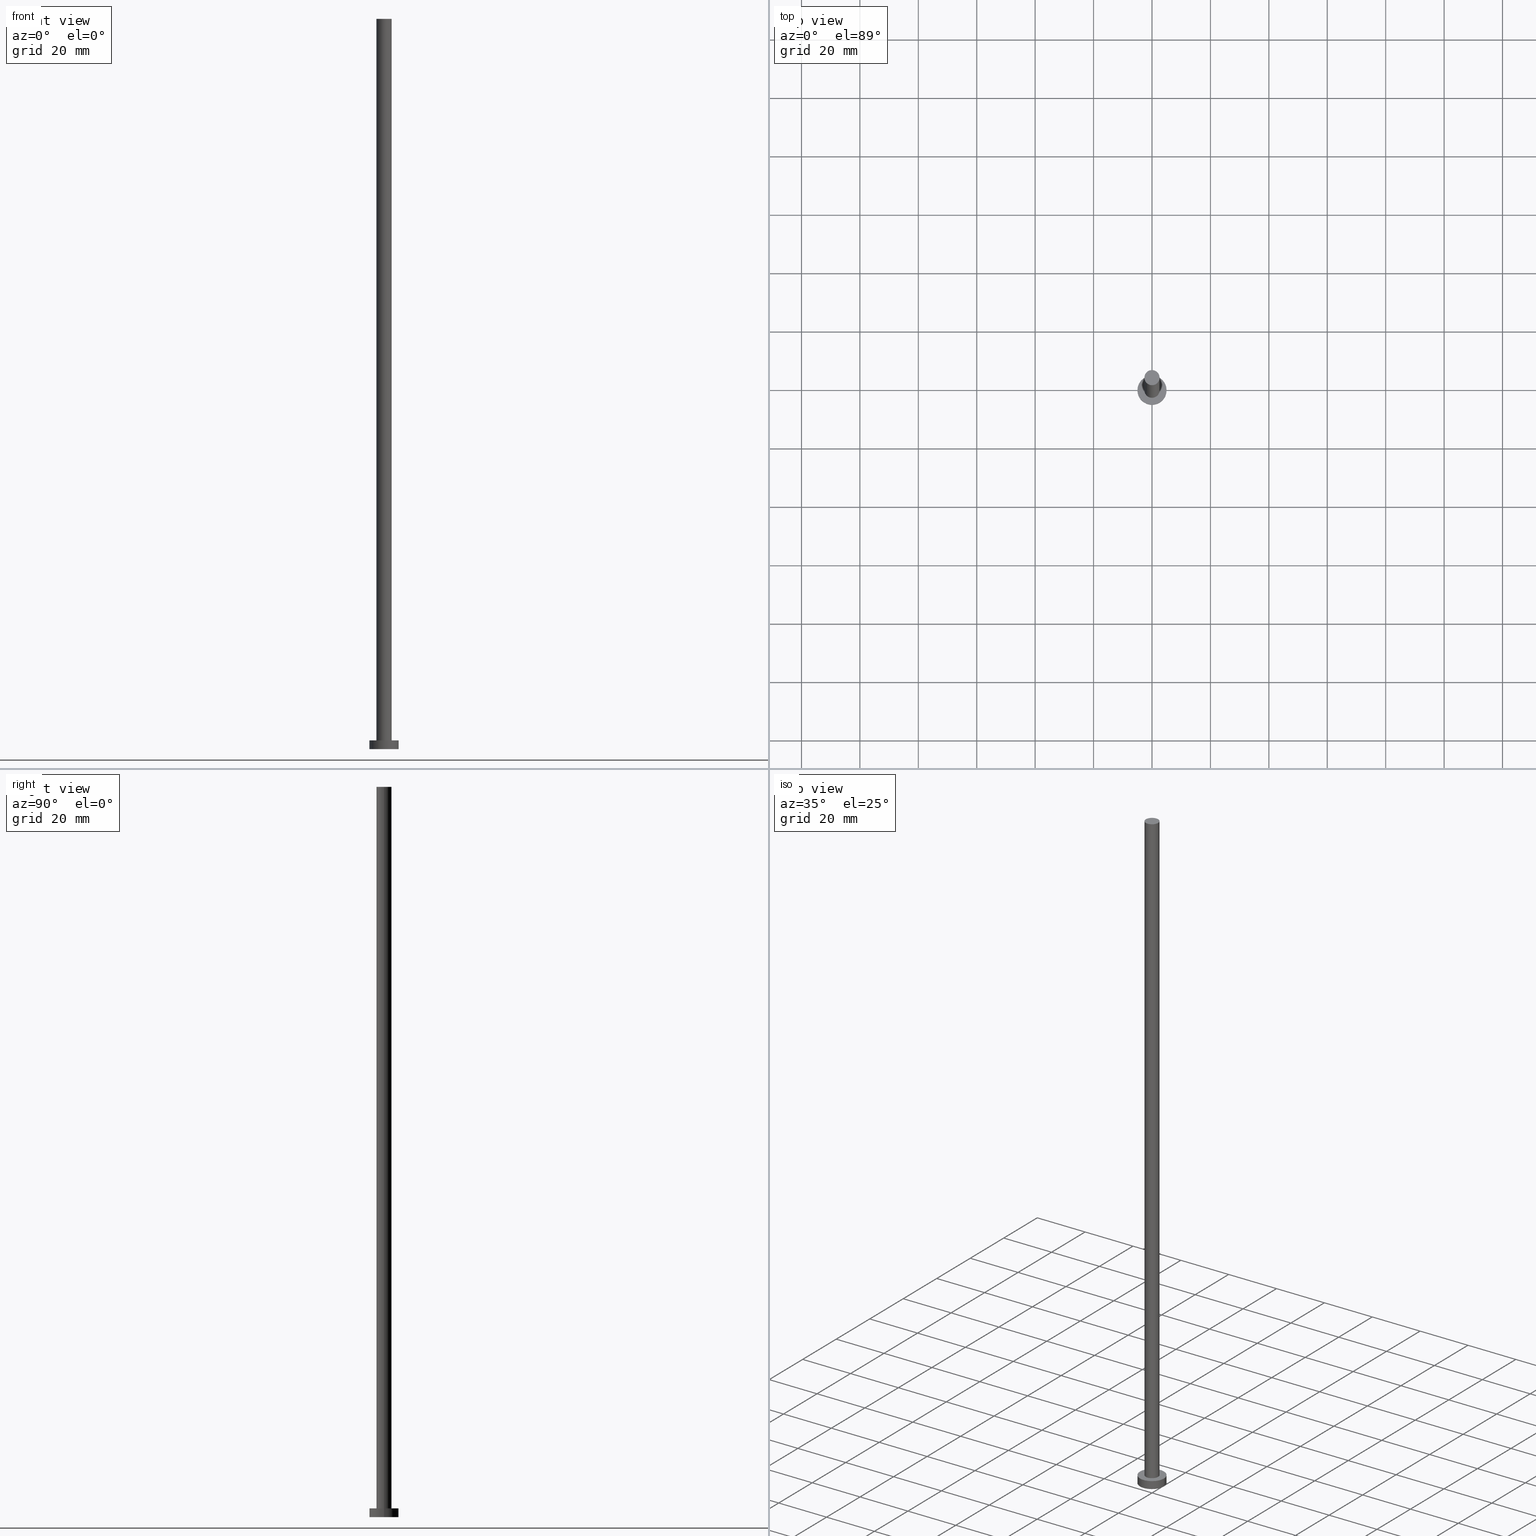
[diagram: canonical four-view strip — front | top / right | iso, engineering-drawing reading convention]
A machine part, canonical four-view strip (front | top / right | iso — engineering-drawing reading convention). The complete STEP part file that produces these views, byte-faithful:
ISO-10303-21;
HEADER;
FILE_DESCRIPTION (( 'STEP AP203' ),
    '1' );
FILE_NAME ('9e5c.STEP',
    '2023-02-12T12:27:35',
    ( '' ),
    ( '' ),
    'SwSTEP 2.0',
    'SolidWorks 2019',
    '' );
FILE_SCHEMA (( 'CONFIG_CONTROL_DESIGN' ));
ENDSEC;

DATA;
#1 = VECTOR ( 'NONE', #34, 1000.000000000000000 ) ;
#2 = PLANE ( 'NONE',  #202 ) ;
#3 = LINE ( 'NONE', #201, #191 ) ;
#4 = ORIENTED_EDGE ( 'NONE', *, *, #104, .F. ) ;
#5 = APPROVAL_PERSON_ORGANIZATION ( #58, #64, #237 ) ;
#6 = VERTEX_POINT ( 'NONE', #209 ) ;
#7 = VERTEX_POINT ( 'NONE', #68 ) ;
#8 = VERTEX_POINT ( 'NONE', #173 ) ;
#9 = CIRCLE ( 'NONE', #156, 5.000000000000000000 ) ;
#10 = PERSON_AND_ORGANIZATION ( #224, #179 ) ;
#11 = ORIENTED_EDGE ( 'NONE', *, *, #14, .F. ) ;
#12 = LINE ( 'NONE', #210, #1 ) ;
#13 = CYLINDRICAL_SURFACE ( 'NONE', #26, 5.000000000000000000 ) ;
#14 = EDGE_CURVE ( 'NONE', #124, #7, #211, .T. ) ;
#15 = PERSON_AND_ORGANIZATION ( #224, #179 ) ;
#16 = AXIS2_PLACEMENT_3D ( 'NONE', #61, #221, #145 ) ;
#17 = DIRECTION ( 'NONE',  ( -0.000000000000000000, -0.000000000000000000, -1.000000000000000000 ) ) ;
#18 = PERSON_AND_ORGANIZATION_ROLE ( 'design_supplier' ) ;
#19 = CALENDAR_DATE ( 2023, 12, 2 ) ;
#20 = LINE ( 'NONE', #217, #21 ) ;
#21 = VECTOR ( 'NONE', #238, 1000.000000000000000 ) ;
#22 = COORDINATED_UNIVERSAL_TIME_OFFSET ( 1, 0, .AHEAD. ) ;
#23 = ADVANCED_FACE ( 'NONE', ( #212 ), #13, .T. ) ;
#24 = CARTESIAN_POINT ( 'NONE',  ( 0.000000000000000000, 0.000000000000000000, 250.0000000000000000 ) ) ;
#25 = CARTESIAN_POINT ( 'NONE',  ( 0.000000000000000000, 0.000000000000000000, 0.000000000000000000 ) ) ;
#26 = AXIS2_PLACEMENT_3D ( 'NONE', #218, #96, #38 ) ;
#27 = CARTESIAN_POINT ( 'NONE',  ( 2.600000000000000089, 3.184081677783118191E-16, 250.0000000000000000 ) ) ;
#28 = VERTEX_POINT ( 'NONE', #117 ) ;
#29 = APPROVAL ( #103, 'NEUR�EN�' ) ;
#30 = VERTEX_POINT ( 'NONE', #159 ) ;
#31 = COORDINATED_UNIVERSAL_TIME_OFFSET ( 1, 0, .AHEAD. ) ;
#32 =( NAMED_UNIT ( * ) SI_UNIT ( $, .STERADIAN. ) SOLID_ANGLE_UNIT ( ) );
#33 = PRODUCT_RELATED_PRODUCT_CATEGORY ( 'detail', '', ( #114 ) ) ;
#34 = DIRECTION ( 'NONE',  ( -0.000000000000000000, -0.000000000000000000, -1.000000000000000000 ) ) ;
#35 = CARTESIAN_POINT ( 'NONE',  ( 0.000000000000000000, 0.000000000000000000, 3.000000000000000000 ) ) ;
#36 = CC_DESIGN_PERSON_AND_ORGANIZATION_ASSIGNMENT ( #228, #112, ( #236 ) ) ;
#37 = PERSON_AND_ORGANIZATION ( #224, #179 ) ;
#38 = DIRECTION ( 'NONE',  ( -1.000000000000000000, 0.000000000000000000, 0.000000000000000000 ) ) ;
#39 = COORDINATED_UNIVERSAL_TIME_OFFSET ( 1, 0, .AHEAD. ) ;
#40 = CC_DESIGN_SECURITY_CLASSIFICATION ( #88, ( #226 ) ) ;
#41 = DIRECTION ( 'NONE',  ( -0.000000000000000000, -0.000000000000000000, -1.000000000000000000 ) ) ;
#42 = DIRECTION ( 'NONE',  ( 0.000000000000000000, 0.000000000000000000, 1.000000000000000000 ) ) ;
#43 = EDGE_CURVE ( 'NONE', #162, #91, #20, .T. ) ;
#44 = CARTESIAN_POINT ( 'NONE',  ( 0.000000000000000000, 0.000000000000000000, 3.000000000000000000 ) ) ;
#45 = AXIS2_PLACEMENT_3D ( 'NONE', #241, #183, #122 ) ;
#46 = VECTOR ( 'NONE', #17, 1000.000000000000000 ) ;
#47 = DIRECTION ( 'NONE',  ( 0.000000000000000000, 0.000000000000000000, 1.000000000000000000 ) ) ;
#48 = APPLICATION_CONTEXT ( 'configuration controlled 3d designs of mechanical parts and assemblies' ) ;
#49 = CLOSED_SHELL ( 'NONE', ( #79, #158, #23, #196, #85, #73, #164 ) ) ;
#50 = DATE_AND_TIME ( #250, #205 ) ;
#51 = CC_DESIGN_PERSON_AND_ORGANIZATION_ASSIGNMENT ( #75, #151, ( #114 ) ) ;
#52 = EDGE_LOOP ( 'NONE', ( #144, #189 ) ) ;
#53 = APPROVAL_STATUS ( 'not_yet_approved' ) ;
#54 = APPLICATION_PROTOCOL_DEFINITION ( 'international standard', 'config_control_design', 1994, #118 ) ;
#55 = DATE_AND_TIME ( #19, #120 ) ;
#56 = CIRCLE ( 'NONE', #195, 5.000000000000000000 ) ;
#57 = CARTESIAN_POINT ( 'NONE',  ( 0.000000000000000000, 0.000000000000000000, 250.0000000000000000 ) ) ;
#58 = PERSON_AND_ORGANIZATION ( #224, #179 ) ;
#59 = EDGE_CURVE ( 'NONE', #30, #7, #115, .T. ) ;
#60 = DIRECTION ( 'NONE',  ( 1.000000000000000000, 0.000000000000000000, 0.000000000000000000 ) ) ;
#61 = CARTESIAN_POINT ( 'NONE',  ( 0.000000000000000000, 0.000000000000000000, 0.000000000000000000 ) ) ;
#62 = EDGE_LOOP ( 'NONE', ( #130, #222 ) ) ;
#63 = CARTESIAN_POINT ( 'NONE',  ( 5.000000000000000000, 6.123233995736766282E-16, 0.000000000000000000 ) ) ;
#64 = APPROVAL ( #137, 'NEUR�EN�' ) ;
#65 = APPROVAL_PERSON_ORGANIZATION ( #10, #229, #126 ) ;
#66 = EDGE_CURVE ( 'NONE', #30, #28, #56, .T. ) ;
#67 = ORIENTED_EDGE ( 'NONE', *, *, #107, .T. ) ;
#68 = CARTESIAN_POINT ( 'NONE',  ( -5.000000000000000000, 0.000000000000000000, 0.000000000000000000 ) ) ;
#69 = AXIS2_PLACEMENT_3D ( 'NONE', #24, #102, #141 ) ;
#70 = CALENDAR_DATE ( 2023, 12, 2 ) ;
#71 = DIRECTION ( 'NONE',  ( 1.000000000000000000, 0.000000000000000000, 0.000000000000000000 ) ) ;
#72 = CC_DESIGN_DATE_AND_TIME_ASSIGNMENT ( #55, #199, ( #88 ) ) ;
#73 = ADVANCED_FACE ( 'NONE', ( #235 ), #138, .T. ) ;
#74 = APPROVAL_DATE_TIME ( #50, #29 ) ;
#75 = PERSON_AND_ORGANIZATION ( #224, #179 ) ;
#76 = ORIENTED_EDGE ( 'NONE', *, *, #184, .T. ) ;
#77 = COORDINATED_UNIVERSAL_TIME_OFFSET ( 1, 0, .AHEAD. ) ;
#78 = CIRCLE ( 'NONE', #69, 2.600000000000000089 ) ;
#79 = ADVANCED_FACE ( 'NONE', ( #178 ), #215, .T. ) ;
#80 = SECURITY_CLASSIFICATION_LEVEL ( 'unclassified' ) ;
#81 = DIRECTION ( 'NONE',  ( 1.000000000000000000, 0.000000000000000000, -0.000000000000000000 ) ) ;
#82 = AXIS2_PLACEMENT_3D ( 'NONE', #190, #93, #133 ) ;
#83 = ORIENTED_EDGE ( 'NONE', *, *, #187, .T. ) ;
#84 = DIRECTION ( 'NONE',  ( 1.000000000000000000, 0.000000000000000000, -0.000000000000000000 ) ) ;
#85 = ADVANCED_FACE ( 'NONE', ( #113 ), #2, .F. ) ;
#86 = ORIENTED_EDGE ( 'NONE', *, *, #66, .T. ) ;
#87 = CARTESIAN_POINT ( 'NONE',  ( 2.600000000000000089, 3.184081677783118191E-16, 3.000000000000000000 ) ) ;
#88 = SECURITY_CLASSIFICATION ( '', '', #80 ) ;
#89 = ORIENTED_EDGE ( 'NONE', *, *, #14, .T. ) ;
#90 = EDGE_CURVE ( 'NONE', #162, #8, #92, .T. ) ;
#91 = VERTEX_POINT ( 'NONE', #87 ) ;
#92 = CIRCLE ( 'NONE', #172, 2.600000000000000089 ) ;
#93 = DIRECTION ( 'NONE',  ( 0.000000000000000000, 0.000000000000000000, 1.000000000000000000 ) ) ;
#94 = DESIGN_CONTEXT ( 'detailed design', #48, 'design' ) ;
#95 = MECHANICAL_CONTEXT ( 'NONE', #118, 'mechanical' ) ;
#96 = DIRECTION ( 'NONE',  ( -0.000000000000000000, -0.000000000000000000, -1.000000000000000000 ) ) ;
#97 = APPROVAL_DATE_TIME ( #254, #64 ) ;
#98 = AXIS2_PLACEMENT_3D ( 'NONE', #57, #252, #234 ) ;
#99 = CARTESIAN_POINT ( 'NONE',  ( -5.000000000000000000, 0.000000000000000000, 3.000000000000000000 ) ) ;
#100 = CARTESIAN_POINT ( 'NONE',  ( 0.000000000000000000, 0.000000000000000000, 250.0000000000000000 ) ) ;
#101 = CARTESIAN_POINT ( 'NONE',  ( 0.000000000000000000, 0.000000000000000000, 3.000000000000000000 ) ) ;
#102 = DIRECTION ( 'NONE',  ( 0.000000000000000000, 0.000000000000000000, 1.000000000000000000 ) ) ;
#103 = APPROVAL_STATUS ( 'not_yet_approved' ) ;
#104 = EDGE_CURVE ( 'NONE', #28, #30, #9, .T. ) ;
#105 = CIRCLE ( 'NONE', #16, 5.000000000000000000 ) ;
#106 = APPROVAL_ROLE ( '' ) ;
#107 = EDGE_CURVE ( 'NONE', #6, #91, #167, .T. ) ;
#108 = DATE_AND_TIME ( #207, #239 ) ;
#109 = ORIENTED_EDGE ( 'NONE', *, *, #187, .F. ) ;
#110 = AXIS2_PLACEMENT_3D ( 'NONE', #44, #203, #185 ) ;
#111 = LOCAL_TIME ( 13, 27, 35.00000000000000000, #248 ) ;
#112 = PERSON_AND_ORGANIZATION_ROLE ( 'creator' ) ;
#113 = FACE_OUTER_BOUND ( 'NONE', #125, .T. ) ;
#114 = PRODUCT ( '9e5c', '9e5c', '', ( #95 ) ) ;
#115 = LINE ( 'NONE', #99, #46 ) ;
#116 = PRODUCT_DEFINITION_SHAPE ( 'NONE', 'NONE',  #236 ) ;
#117 = CARTESIAN_POINT ( 'NONE',  ( 5.000000000000000000, 6.123233995736766282E-16, 3.000000000000000000 ) ) ;
#118 = APPLICATION_CONTEXT ( 'configuration controlled 3d designs of mechanical parts and assemblies' ) ;
#119 = PERSON_AND_ORGANIZATION ( #224, #179 ) ;
#120 = LOCAL_TIME ( 13, 27, 35.00000000000000000, #39 ) ;
#121 = PLANE ( 'NONE',  #225 ) ;
#122 = DIRECTION ( 'NONE',  ( 1.000000000000000000, 0.000000000000000000, 0.000000000000000000 ) ) ;
#123 = DIRECTION ( 'NONE',  ( 0.000000000000000000, 0.000000000000000000, 1.000000000000000000 ) ) ;
#124 = VERTEX_POINT ( 'NONE', #63 ) ;
#125 = EDGE_LOOP ( 'NONE', ( #140, #11 ) ) ;
#126 = APPROVAL_ROLE ( '' ) ;
#127 = ORIENTED_EDGE ( 'NONE', *, *, #135, .T. ) ;
#128 = DATE_TIME_ROLE ( 'creation_date' ) ;
#129 = UNCERTAINTY_MEASURE_WITH_UNIT (LENGTH_MEASURE( 1.000000000000000082E-05 ), #177, 'distance_accuracy_value', 'NONE');
#130 = ORIENTED_EDGE ( 'NONE', *, *, #154, .T. ) ;
#131 = DIRECTION ( 'NONE',  ( 0.000000000000000000, 0.000000000000000000, 1.000000000000000000 ) ) ;
#132 = PLANE ( 'NONE',  #182 ) ;
#133 = DIRECTION ( 'NONE',  ( 1.000000000000000000, 0.000000000000000000, 0.000000000000000000 ) ) ;
#134 = ADVANCED_BREP_SHAPE_REPRESENTATION ( '9e5c', ( #208, #230 ), #227 ) ;
#135 = EDGE_CURVE ( 'NONE', #28, #124, #3, .T. ) ;
#136 = CC_DESIGN_PERSON_AND_ORGANIZATION_ASSIGNMENT ( #153, #180, ( #226 ) ) ;
#137 = APPROVAL_STATUS ( 'not_yet_approved' ) ;
#138 = CYLINDRICAL_SURFACE ( 'NONE', #245, 2.600000000000000089 ) ;
#139 = DIRECTION ( 'NONE',  ( -0.000000000000000000, -0.000000000000000000, -1.000000000000000000 ) ) ;
#140 = ORIENTED_EDGE ( 'NONE', *, *, #169, .F. ) ;
#141 = DIRECTION ( 'NONE',  ( 1.000000000000000000, 0.000000000000000000, 0.000000000000000000 ) ) ;
#142 = CC_DESIGN_PERSON_AND_ORGANIZATION_ASSIGNMENT ( #37, #18, ( #226 ) ) ;
#143 = ORIENTED_EDGE ( 'NONE', *, *, #154, .F. ) ;
#144 = ORIENTED_EDGE ( 'NONE', *, *, #107, .F. ) ;
#145 = DIRECTION ( 'NONE',  ( 1.000000000000000000, 0.000000000000000000, 0.000000000000000000 ) ) ;
#146 = EDGE_LOOP ( 'NONE', ( #86, #231 ) ) ;
#147 = FACE_OUTER_BOUND ( 'NONE', #146, .T. ) ;
#148 = CARTESIAN_POINT ( 'NONE',  ( 0.000000000000000000, 0.000000000000000000, 3.000000000000000000 ) ) ;
#149 = ORIENTED_EDGE ( 'NONE', *, *, #90, .F. ) ;
#150 = LOCAL_TIME ( 13, 27, 35.00000000000000000, #22 ) ;
#151 = PERSON_AND_ORGANIZATION_ROLE ( 'design_owner' ) ;
#152 = ORIENTED_EDGE ( 'NONE', *, *, #66, .F. ) ;
#153 = PERSON_AND_ORGANIZATION ( #224, #179 ) ;
#154 = EDGE_CURVE ( 'NONE', #8, #162, #78, .T. ) ;
#155 = DIRECTION ( 'NONE',  ( 0.000000000000000000, 0.000000000000000000, 1.000000000000000000 ) ) ;
#156 = AXIS2_PLACEMENT_3D ( 'NONE', #101, #123, #255 ) ;
#157 = CALENDAR_DATE ( 2023, 12, 2 ) ;
#158 = ADVANCED_FACE ( 'NONE', ( #223 ), #161, .T. ) ;
#159 = CARTESIAN_POINT ( 'NONE',  ( -5.000000000000000000, 0.000000000000000000, 3.000000000000000000 ) ) ;
#160 = CC_DESIGN_APPROVAL ( #64, ( #88 ) ) ;
#161 = CYLINDRICAL_SURFACE ( 'NONE', #110, 5.000000000000000000 ) ;
#162 = VERTEX_POINT ( 'NONE', #27 ) ;
#163 = DIRECTION ( 'NONE',  ( 1.000000000000000000, 0.000000000000000000, 0.000000000000000000 ) ) ;
#164 = ADVANCED_FACE ( 'NONE', ( #165 ), #121, .T. ) ;
#165 = FACE_OUTER_BOUND ( 'NONE', #62, .T. ) ;
#166 = CC_DESIGN_DATE_AND_TIME_ASSIGNMENT ( #193, #128, ( #236 ) ) ;
#167 = CIRCLE ( 'NONE', #45, 2.600000000000000089 ) ;
#168 = ORIENTED_EDGE ( 'NONE', *, *, #43, .F. ) ;
#169 = EDGE_CURVE ( 'NONE', #7, #124, #105, .T. ) ;
#170 = EDGE_LOOP ( 'NONE', ( #244, #152, #247, #204 ) ) ;
#171 = DIRECTION ( 'NONE',  ( 0.000000000000000000, 0.000000000000000000, 1.000000000000000000 ) ) ;
#172 = AXIS2_PLACEMENT_3D ( 'NONE', #200, #240, #163 ) ;
#173 = CARTESIAN_POINT ( 'NONE',  ( -2.600000000000000089, 0.000000000000000000, 250.0000000000000000 ) ) ;
#174 = APPROVAL_DATE_TIME ( #108, #229 ) ;
#175 = DIRECTION ( 'NONE',  ( 1.000000000000000000, 0.000000000000000000, 0.000000000000000000 ) ) ;
#176 = APPROVAL_PERSON_ORGANIZATION ( #15, #29, #106 ) ;
#177 =( LENGTH_UNIT ( ) NAMED_UNIT ( * ) SI_UNIT ( .MILLI., .METRE. ) );
#178 = FACE_OUTER_BOUND ( 'NONE', #242, .T. ) ;
#179 = ORGANIZATION ( 'NEUR�EN�', 'NEUR�EN�', '' ) ;
#180 = PERSON_AND_ORGANIZATION_ROLE ( 'creator' ) ;
#181 = DIRECTION ( 'NONE',  ( 0.000000000000000000, 0.000000000000000000, 1.000000000000000000 ) ) ;
#182 = AXIS2_PLACEMENT_3D ( 'NONE', #148, #47, #233 ) ;
#183 = DIRECTION ( 'NONE',  ( 0.000000000000000000, 0.000000000000000000, 1.000000000000000000 ) ) ;
#184 = EDGE_CURVE ( 'NONE', #91, #6, #253, .T. ) ;
#185 = DIRECTION ( 'NONE',  ( -1.000000000000000000, 0.000000000000000000, 0.000000000000000000 ) ) ;
#186 = CC_DESIGN_PERSON_AND_ORGANIZATION_ASSIGNMENT ( #119, #197, ( #88 ) ) ;
#187 = EDGE_CURVE ( 'NONE', #8, #6, #12, .T. ) ;
#188 = EDGE_LOOP ( 'NONE', ( #4, #127, #89, #214 ) ) ;
#189 = ORIENTED_EDGE ( 'NONE', *, *, #184, .F. ) ;
#190 = CARTESIAN_POINT ( 'NONE',  ( 0.000000000000000000, 0.000000000000000000, 3.000000000000000000 ) ) ;
#191 = VECTOR ( 'NONE', #139, 1000.000000000000000 ) ;
#192 = CARTESIAN_POINT ( 'NONE',  ( 0.000000000000000000, 0.000000000000000000, 0.000000000000000000 ) ) ;
#193 = DATE_AND_TIME ( #70, #111 ) ;
#194 = DIRECTION ( 'NONE',  ( -1.000000000000000000, 0.000000000000000000, 0.000000000000000000 ) ) ;
#195 = AXIS2_PLACEMENT_3D ( 'NONE', #35, #155, #60 ) ;
#196 = ADVANCED_FACE ( 'NONE', ( #213, #147 ), #132, .T. ) ;
#197 = PERSON_AND_ORGANIZATION_ROLE ( 'classification_officer' ) ;
#198 = CC_DESIGN_APPROVAL ( #229, ( #236 ) ) ;
#199 = DATE_TIME_ROLE ( 'classification_date' ) ;
#200 = CARTESIAN_POINT ( 'NONE',  ( 0.000000000000000000, 0.000000000000000000, 250.0000000000000000 ) ) ;
#201 = CARTESIAN_POINT ( 'NONE',  ( 5.000000000000000000, 6.123233995736766282E-16, 3.000000000000000000 ) ) ;
#202 = AXIS2_PLACEMENT_3D ( 'NONE', #25, #42, #84 ) ;
#203 = DIRECTION ( 'NONE',  ( -0.000000000000000000, -0.000000000000000000, -1.000000000000000000 ) ) ;
#204 = ORIENTED_EDGE ( 'NONE', *, *, #169, .T. ) ;
#205 = LOCAL_TIME ( 13, 27, 35.00000000000000000, #77 ) ;
#206 = ORIENTED_EDGE ( 'NONE', *, *, #43, .T. ) ;
#207 = CALENDAR_DATE ( 2023, 12, 2 ) ;
#208 = MANIFOLD_SOLID_BREP ( 'P�idat vysunut�m3', #49 ) ;
#209 = CARTESIAN_POINT ( 'NONE',  ( -2.600000000000000089, 0.000000000000000000, 3.000000000000000000 ) ) ;
#210 = CARTESIAN_POINT ( 'NONE',  ( -2.600000000000000089, 0.000000000000000000, 250.0000000000000000 ) ) ;
#211 = CIRCLE ( 'NONE', #216, 5.000000000000000000 ) ;
#212 = FACE_OUTER_BOUND ( 'NONE', #170, .T. ) ;
#213 = FACE_BOUND ( 'NONE', #52, .T. ) ;
#214 = ORIENTED_EDGE ( 'NONE', *, *, #59, .F. ) ;
#215 = CYLINDRICAL_SURFACE ( 'NONE', #98, 2.600000000000000089 ) ;
#216 = AXIS2_PLACEMENT_3D ( 'NONE', #249, #131, #71 ) ;
#217 = CARTESIAN_POINT ( 'NONE',  ( 2.600000000000000089, 3.184081677783118191E-16, 250.0000000000000000 ) ) ;
#218 = CARTESIAN_POINT ( 'NONE',  ( 0.000000000000000000, 0.000000000000000000, 3.000000000000000000 ) ) ;
#219 = SHAPE_DEFINITION_REPRESENTATION ( #116, #134 ) ;
#220 = CARTESIAN_POINT ( 'NONE',  ( 0.000000000000000000, 0.000000000000000000, 250.0000000000000000 ) ) ;
#221 = DIRECTION ( 'NONE',  ( 0.000000000000000000, 0.000000000000000000, 1.000000000000000000 ) ) ;
#222 = ORIENTED_EDGE ( 'NONE', *, *, #90, .T. ) ;
#223 = FACE_OUTER_BOUND ( 'NONE', #188, .T. ) ;
#224 = PERSON ( 'NEUR�EN�', 'NEUR�EN�', 'NEUR�EN�', ('NEUR�EN�'), ('NEUR�EN�'), ('NEUR�EN�') ) ;
#225 = AXIS2_PLACEMENT_3D ( 'NONE', #100, #181, #81 ) ;
#226 = PRODUCT_DEFINITION_FORMATION_WITH_SPECIFIED_SOURCE ( 'LIBOVOLN�', '', #114, .NOT_KNOWN. ) ;
#227 =( GEOMETRIC_REPRESENTATION_CONTEXT ( 3 ) GLOBAL_UNCERTAINTY_ASSIGNED_CONTEXT ( ( #129 ) ) GLOBAL_UNIT_ASSIGNED_CONTEXT ( ( #177, #246, #32 ) ) REPRESENTATION_CONTEXT ( 'NONE', 'WORKASPACE' ) );
#228 = PERSON_AND_ORGANIZATION ( #224, #179 ) ;
#229 = APPROVAL ( #53, 'NEUR�EN�' ) ;
#230 = AXIS2_PLACEMENT_3D ( 'NONE', #192, #171, #175 ) ;
#231 = ORIENTED_EDGE ( 'NONE', *, *, #104, .T. ) ;
#232 = APPLICATION_PROTOCOL_DEFINITION ( 'international standard', 'config_control_design', 1994, #48 ) ;
#233 = DIRECTION ( 'NONE',  ( 1.000000000000000000, 0.000000000000000000, -0.000000000000000000 ) ) ;
#234 = DIRECTION ( 'NONE',  ( -1.000000000000000000, 0.000000000000000000, 0.000000000000000000 ) ) ;
#235 = FACE_OUTER_BOUND ( 'NONE', #251, .T. ) ;
#236 = PRODUCT_DEFINITION ( 'NEZN�M�', '', #226, #94 ) ;
#237 = APPROVAL_ROLE ( '' ) ;
#238 = DIRECTION ( 'NONE',  ( -0.000000000000000000, -0.000000000000000000, -1.000000000000000000 ) ) ;
#239 = LOCAL_TIME ( 13, 27, 35.00000000000000000, #31 ) ;
#240 = DIRECTION ( 'NONE',  ( 0.000000000000000000, 0.000000000000000000, 1.000000000000000000 ) ) ;
#241 = CARTESIAN_POINT ( 'NONE',  ( 0.000000000000000000, 0.000000000000000000, 3.000000000000000000 ) ) ;
#242 = EDGE_LOOP ( 'NONE', ( #149, #206, #76, #109 ) ) ;
#243 = CC_DESIGN_APPROVAL ( #29, ( #226 ) ) ;
#244 = ORIENTED_EDGE ( 'NONE', *, *, #135, .F. ) ;
#245 = AXIS2_PLACEMENT_3D ( 'NONE', #220, #41, #194 ) ;
#246 =( NAMED_UNIT ( * ) PLANE_ANGLE_UNIT ( ) SI_UNIT ( $, .RADIAN. ) );
#247 = ORIENTED_EDGE ( 'NONE', *, *, #59, .T. ) ;
#248 = COORDINATED_UNIVERSAL_TIME_OFFSET ( 1, 0, .AHEAD. ) ;
#249 = CARTESIAN_POINT ( 'NONE',  ( 0.000000000000000000, 0.000000000000000000, 0.000000000000000000 ) ) ;
#250 = CALENDAR_DATE ( 2023, 12, 2 ) ;
#251 = EDGE_LOOP ( 'NONE', ( #168, #143, #83, #67 ) ) ;
#252 = DIRECTION ( 'NONE',  ( -0.000000000000000000, -0.000000000000000000, -1.000000000000000000 ) ) ;
#253 = CIRCLE ( 'NONE', #82, 2.600000000000000089 ) ;
#254 = DATE_AND_TIME ( #157, #150 ) ;
#255 = DIRECTION ( 'NONE',  ( 1.000000000000000000, 0.000000000000000000, 0.000000000000000000 ) ) ;
ENDSEC;
END-ISO-10303-21;
